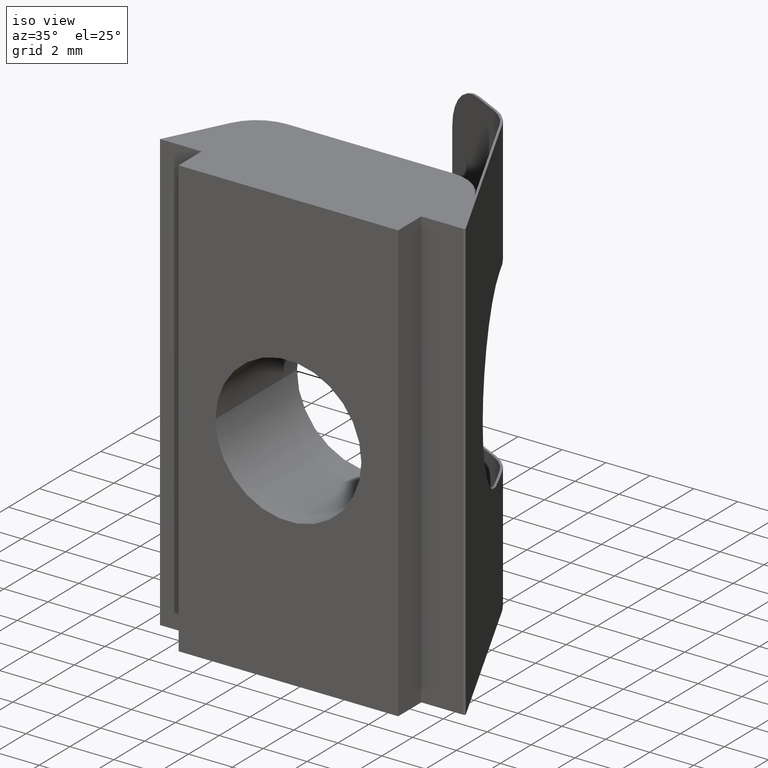
[diagram: clean part render]
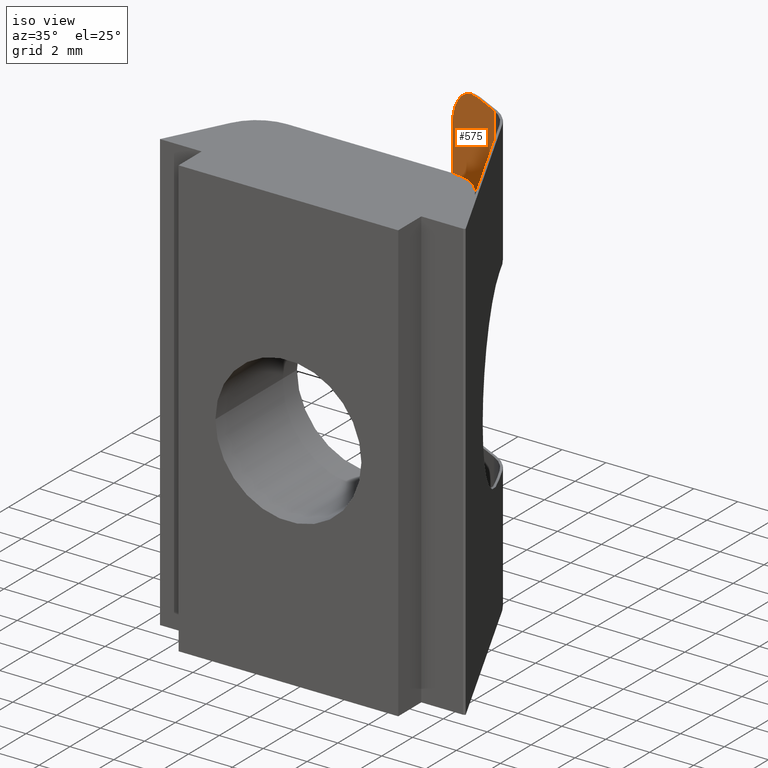
[diagram: same view with one face highlighted and labeled with its STEP entity id]
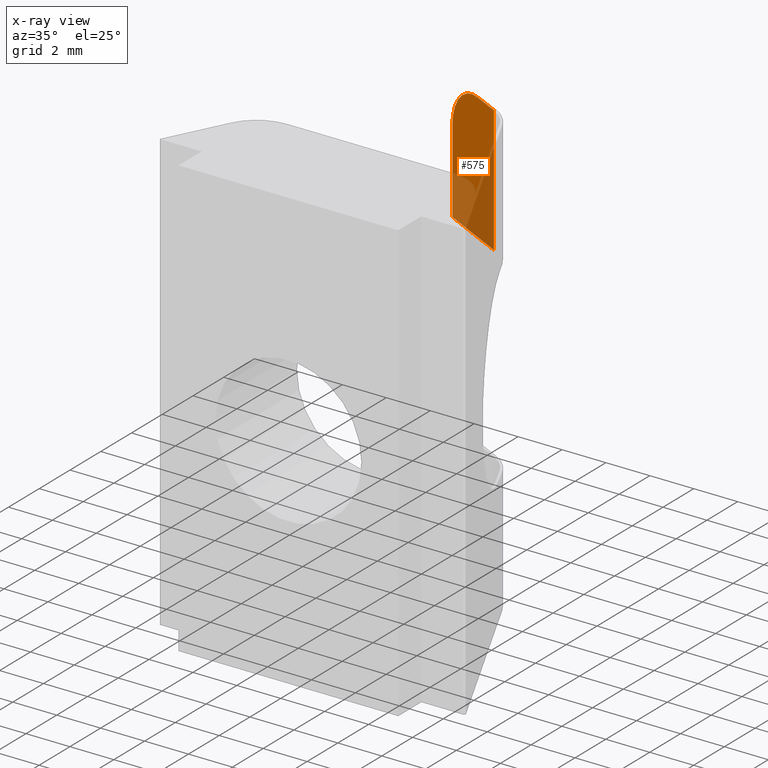
[diagram: x-ray of the same camera — body ghosted, the highlighted face saturated]
A machine part, iso view. The second image highlights one B-rep face of the part: STEP entity #575.
The next image is the same camera in x-ray: the body ghosted, the highlighted face saturated — about 45% of this face is hidden behind the body in this view.
In plain terms, the highlighted planar face has unit normal (-0.4541, -0.8909, 0).
Its self-contained STEP definition (entity closure, byte-faithful):
#23=PLANE('',#640);
#48=FACE_OUTER_BOUND('',#78,.T.);
#78=EDGE_LOOP('',(#442,#443,#444,#445,#446));
#104=LINE('',#849,#168);
#121=LINE('',#907,#185);
#126=LINE('',#922,#190);
#127=LINE('',#925,#191);
#168=VECTOR('',#683,10.);
#185=VECTOR('',#726,10.);
#190=VECTOR('',#741,10.);
#191=VECTOR('',#744,10.);
#241=CIRCLE('',#641,2.);
#254=VERTEX_POINT('',#846);
#255=VERTEX_POINT('',#848);
#273=VERTEX_POINT('',#905);
#278=VERTEX_POINT('',#921);
#279=VERTEX_POINT('',#923);
#311=EDGE_CURVE('',#255,#254,#104,.T.);
#336=EDGE_CURVE('',#273,#254,#121,.T.);
#343=EDGE_CURVE('',#278,#273,#126,.T.);
#344=EDGE_CURVE('',#279,#278,#241,.T.);
#345=EDGE_CURVE('',#255,#279,#127,.T.);
#442=ORIENTED_EDGE('',*,*,#311,.T.);
#443=ORIENTED_EDGE('',*,*,#336,.F.);
#444=ORIENTED_EDGE('',*,*,#343,.F.);
#445=ORIENTED_EDGE('',*,*,#344,.F.);
#446=ORIENTED_EDGE('',*,*,#345,.F.);
#575=ADVANCED_FACE('',(#48),#23,.T.);
#640=AXIS2_PLACEMENT_3D('',#920,#739,#740);
#641=AXIS2_PLACEMENT_3D('',#924,#742,#743);
#683=DIRECTION('',(0.890925841718743,-0.454148813229485,-2.43361688246749E-16));
#726=DIRECTION('',(0.,0.,-1.));
#739=DIRECTION('center_axis',(-0.454148813229485,-0.890925841718743,0.));
#740=DIRECTION('ref_axis',(0.890925841718743,-0.454148813229485,0.));
#741=DIRECTION('',(0.890925841718743,-0.454148813229485,0.));
#742=DIRECTION('center_axis',(0.454148813229485,0.890925841718743,0.));
#743=DIRECTION('ref_axis',(-0.629979704213659,0.321131705502387,0.707106781186547));
#744=DIRECTION('',(0.,0.,1.));
#846=CARTESIAN_POINT('',(1.85630857050767,9.21369384034052,14.25));
#848=CARTESIAN_POINT('',(-1.09181148409751,10.7164959382952,14.25));
#849=CARTESIAN_POINT('',(-0.891405721934886,10.6143392437774,14.25));
#905=CARTESIAN_POINT('',(1.85630857050767,9.21369384034052,20.));
#907=CARTESIAN_POINT('',(1.85630857050767,9.21369384034052,0.));
#920=CARTESIAN_POINT('Origin',(-1.09181148409751,10.7164959382952,0.));
#921=CARTESIAN_POINT('',(0.690040199339977,9.80819831183625,20.));
#922=CARTESIAN_POINT('',(2.442578391717,8.914843216566,20.));
#923=CARTESIAN_POINT('',(-1.09181148409751,10.7164959382952,18.));
#924=CARTESIAN_POINT('Origin',(0.690040199339983,9.80819831183626,18.));
#925=CARTESIAN_POINT('',(-1.09181148409751,10.7164959382952,0.));